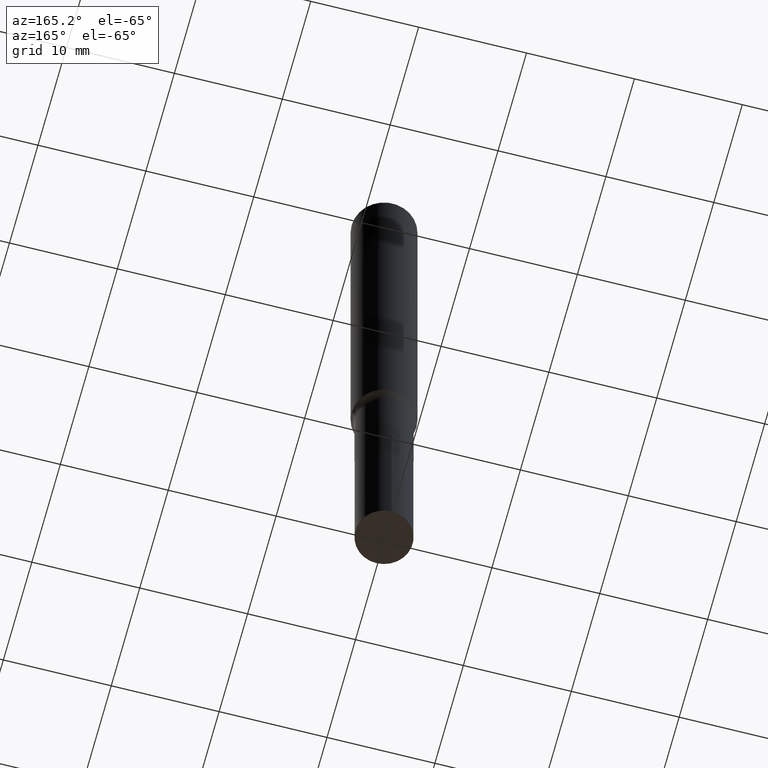
[diagram: clean part render]
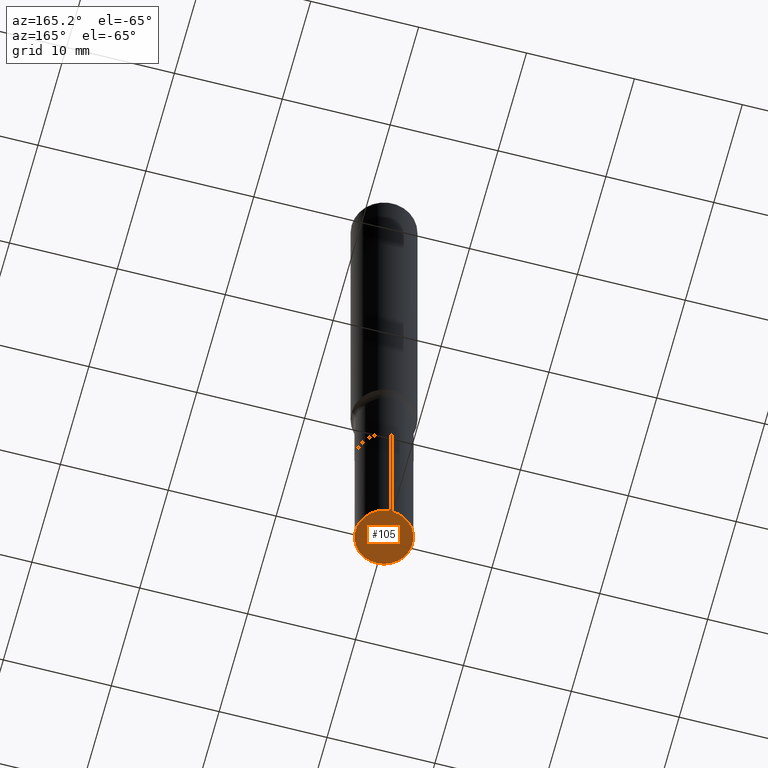
[diagram: same view with one face highlighted and labeled with its STEP entity id]
A machine part, auxiliary view. The second image highlights one B-rep face of the part: STEP entity #105.
In plain terms, the highlighted planar face has unit normal (-0, 0, 1).
Its self-contained STEP definition (entity closure, byte-faithful):
#24 = CARTESIAN_POINT ( 'NONE',  ( 6.258336242776719159E-29, -8.934853672551297411E-15, -2.559100000000000374 ) ) ;
#28 = CIRCLE ( 'NONE', #151, 0.1043499999999999844 ) ;
#48 = AXIS2_PLACEMENT_3D ( 'NONE', #24, #170, #173 ) ;
#51 = DIRECTION ( 'NONE',  ( -6.982962677686265922E-15, -1.000000000000000000, 5.235932905920965262E-15 ) ) ;
#63 = EDGE_CURVE ( 'NONE', #349, #90, #375, .T. ) ;
#67 = DIRECTION ( 'NONE',  ( -2.445682234328960233E-29, 3.491175697593614171E-15, 1.000000000000000000 ) ) ;
#90 = VERTEX_POINT ( 'NONE', #142 ) ;
#105 = ADVANCED_FACE ( 'NONE', ( #249 ), #390, .F. ) ;
#120 = ORIENTED_EDGE ( 'NONE', *, *, #191, .F. ) ;
#142 = CARTESIAN_POINT ( 'NONE',  ( -7.286721554164991048E-16, -0.1043500000000089217, -2.559099999999999930 ) ) ;
#151 = AXIS2_PLACEMENT_3D ( 'NONE', #236, #274, #51 ) ;
#170 = DIRECTION ( 'NONE',  ( -2.445682234328960793E-29, 3.491175697593613777E-15, 1.000000000000000000 ) ) ;
#173 = DIRECTION ( 'NONE',  ( -6.982962677686265922E-15, -1.000000000000000000, 5.235932905920965262E-15 ) ) ;
#191 = EDGE_CURVE ( 'NONE', #90, #349, #28, .T. ) ;
#236 = CARTESIAN_POINT ( 'NONE',  ( 6.258336242776719159E-29, -8.934853672551297411E-15, -2.559100000000000374 ) ) ;
#249 = FACE_OUTER_BOUND ( 'NONE', #300, .T. ) ;
#274 = DIRECTION ( 'NONE',  ( -2.445682234328960793E-29, 3.491175697593613777E-15, 1.000000000000000000 ) ) ;
#300 = EDGE_LOOP ( 'NONE', ( #120, #341 ) ) ;
#341 = ORIENTED_EDGE ( 'NONE', *, *, #63, .F. ) ;
#344 = CARTESIAN_POINT ( 'NONE',  ( 7.414513447657190620E-16, 0.1043499999999910610, -2.559100000000001263 ) ) ;
#349 = VERTEX_POINT ( 'NONE', #344 ) ;
#356 = DIRECTION ( 'NONE',  ( -6.982962677686265922E-15, -1.000000000000000000, 3.491175697593614171E-15 ) ) ;
#361 = CARTESIAN_POINT ( 'NONE',  ( -3.098465129544140770E-29, -2.233432579377583870E-14, -2.559100000000000374 ) ) ;
#375 = CIRCLE ( 'NONE', #48, 0.1043499999999999844 ) ;
#390 = PLANE ( 'NONE',  #407 ) ;
#407 = AXIS2_PLACEMENT_3D ( 'NONE', #361, #67, #356 ) ;